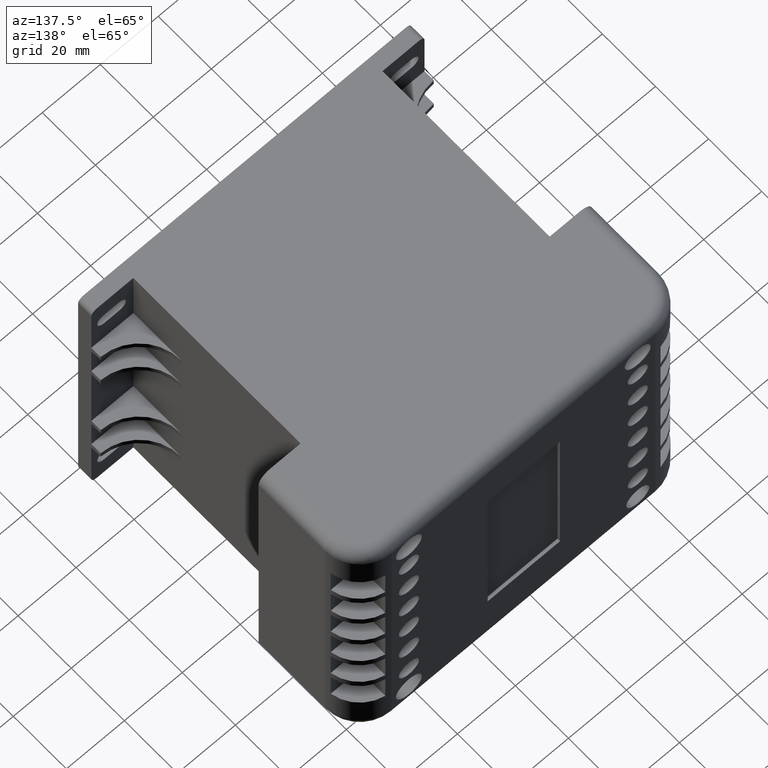
[diagram: clean part render]
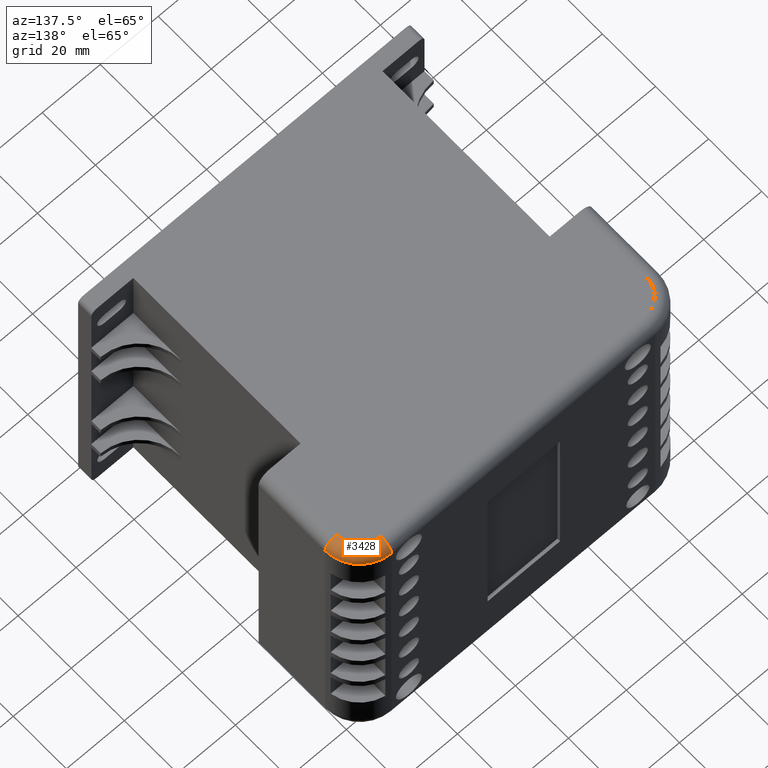
[diagram: same view with one face highlighted and labeled with its STEP entity id]
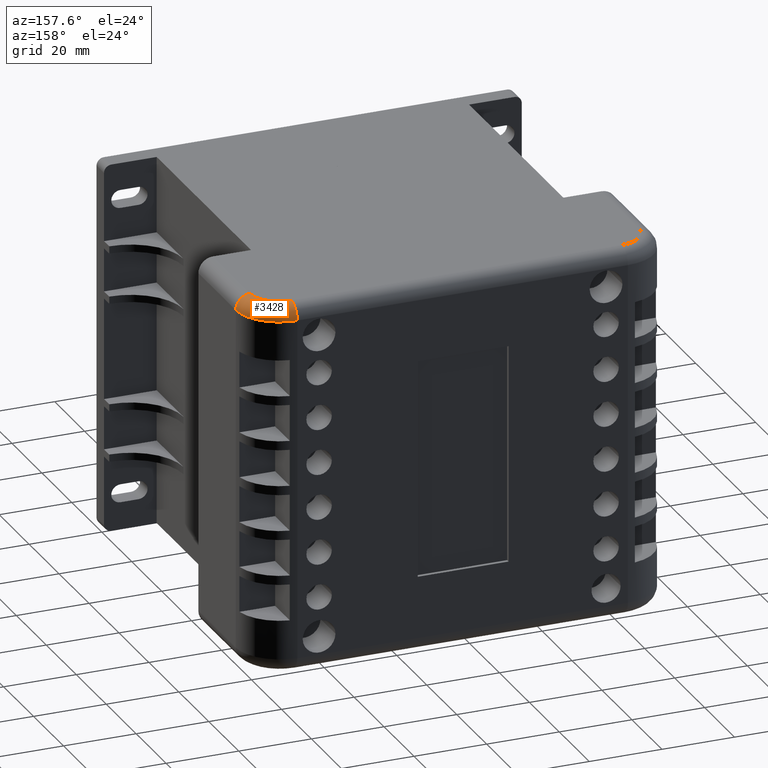
[diagram: same view with one face highlighted and labeled with its STEP entity id]
A machine part, auxiliary view. The second image highlights one B-rep face of the part: STEP entity #3428.
A second angle (auxiliary view) of the same face is appended — the face is thin or edge-on in the first view.
In plain terms, the highlighted toroidal blend (fillet) surface has major radius 8 mm and minor (blend) radius 4 mm.
Its self-contained STEP definition (entity closure, byte-faithful):
#26=TOROIDAL_SURFACE('',#3820,8.,4.);
#176=CIRCLE('',#3819,4.);
#177=CIRCLE('',#3821,4.00000000000004);
#178=CIRCLE('',#3822,12.);
#179=CIRCLE('',#3823,8.);
#389=FACE_OUTER_BOUND('',#600,.T.);
#600=EDGE_LOOP('',(#2650,#2651,#2652,#2653));
#1532=VERTEX_POINT('',#5535);
#1537=VERTEX_POINT('',#5551);
#1538=VERTEX_POINT('',#5552);
#1539=VERTEX_POINT('',#5557);
#1930=EDGE_CURVE('',#1537,#1538,#176,.T.);
#1933=EDGE_CURVE('',#1539,#1532,#177,.T.);
#1934=EDGE_CURVE('',#1532,#1538,#178,.T.);
#1935=EDGE_CURVE('',#1537,#1539,#179,.T.);
#2650=ORIENTED_EDGE('',*,*,#1933,.T.);
#2651=ORIENTED_EDGE('',*,*,#1934,.T.);
#2652=ORIENTED_EDGE('',*,*,#1930,.F.);
#2653=ORIENTED_EDGE('',*,*,#1935,.T.);
#3428=ADVANCED_FACE('',(#389),#26,.T.);
#3819=AXIS2_PLACEMENT_3D('',#5553,#4609,#4610);
#3820=AXIS2_PLACEMENT_3D('',#5556,#4613,#4614);
#3821=AXIS2_PLACEMENT_3D('',#5558,#4615,#4616);
#3822=AXIS2_PLACEMENT_3D('',#5559,#4617,#4618);
#3823=AXIS2_PLACEMENT_3D('',#5560,#4619,#4620);
#4609=DIRECTION('center_axis',(-1.,-5.55111512312578E-16,0.));
#4610=DIRECTION('ref_axis',(0.,0.,1.));
#4613=DIRECTION('center_axis',(0.,0.,-1.));
#4614=DIRECTION('ref_axis',(-1.,0.,0.));
#4615=DIRECTION('center_axis',(0.,1.,0.));
#4616=DIRECTION('ref_axis',(0.,0.,1.));
#4617=DIRECTION('center_axis',(0.,0.,1.));
#4618=DIRECTION('ref_axis',(0.707106781186548,0.707106781186547,0.));
#4619=DIRECTION('center_axis',(0.,0.,-1.));
#4620=DIRECTION('ref_axis',(0.707106781186548,0.707106781186547,0.));
#5535=CARTESIAN_POINT('',(3.4133915737495E-14,25.,98.));
#5551=CARTESIAN_POINT('',(-12.,33.,102.));
#5552=CARTESIAN_POINT('',(-12.,37.,98.));
#5553=CARTESIAN_POINT('Origin',(-12.,33.,98.));
#5556=CARTESIAN_POINT('Origin',(-12.,25.,98.));
#5557=CARTESIAN_POINT('',(-3.99999999999997,25.,102.));
#5558=CARTESIAN_POINT('Origin',(-3.99999999999997,25.,98.));
#5559=CARTESIAN_POINT('Origin',(-12.,25.,98.));
#5560=CARTESIAN_POINT('Origin',(-12.,25.,102.));